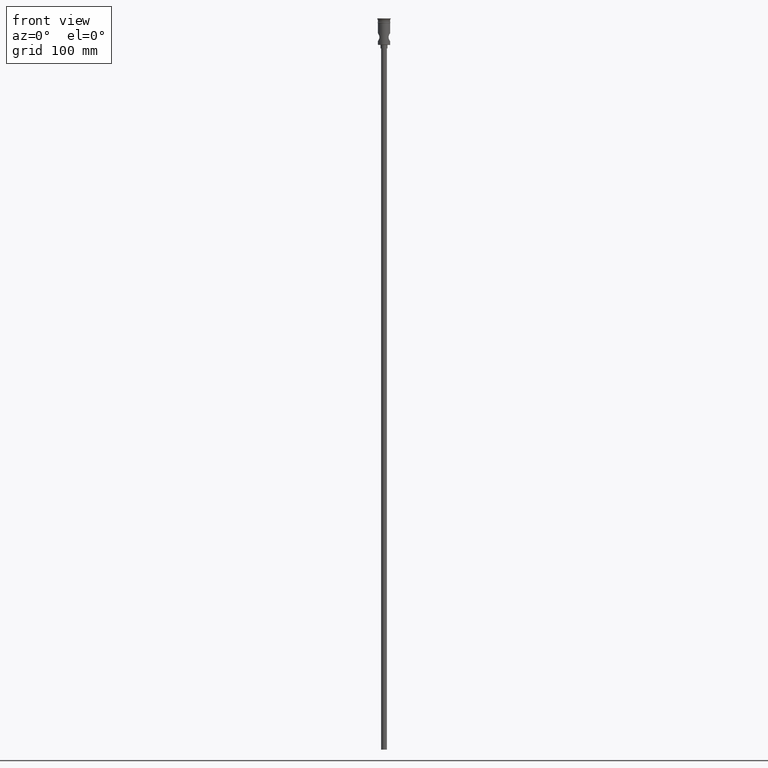
[diagram: clean part render]
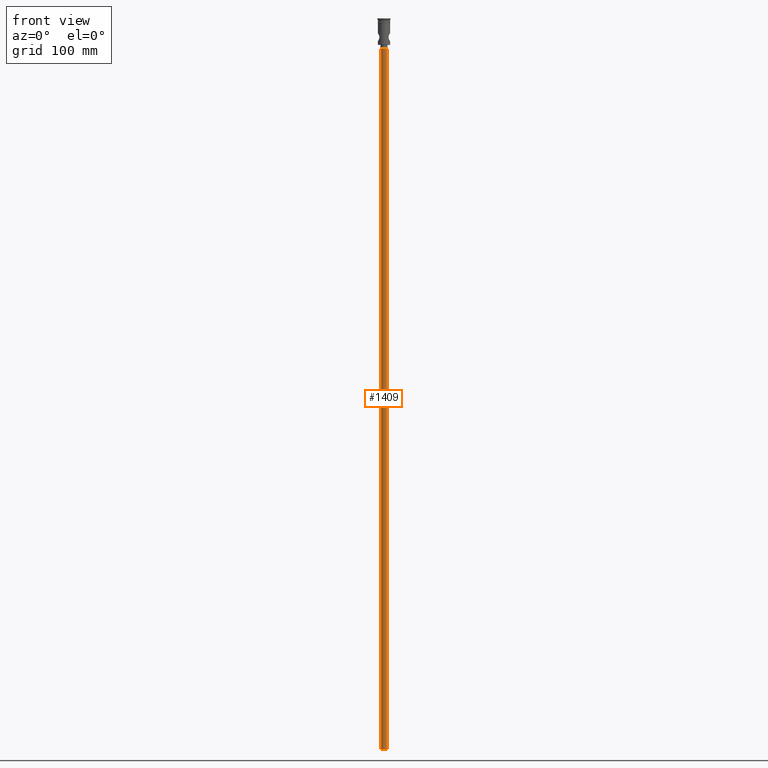
[diagram: same view with one face highlighted and labeled with its STEP entity id]
A machine part, front view. The second image highlights one B-rep face of the part: STEP entity #1409.
In plain terms, the highlighted cylindrical surface (edge-blend (fillet) strip) has radius 2.5 mm, axis along (-0, -0, 1).
Its self-contained STEP definition (entity closure, byte-faithful):
#4 = ORIENTED_EDGE ( 'NONE', *, *, #722, .F. ) ;
#55 = LINE ( 'NONE', #507, #60 ) ;
#60 = VECTOR ( 'NONE', #382, 1000.000000000000000 ) ;
#86 = CARTESIAN_POINT ( 'NONE',  ( -2.500000000000000000, 3.061616997868383141E-16, -622.4999999999998863 ) ) ;
#103 = AXIS2_PLACEMENT_3D ( 'NONE', #1075, #852, #1403 ) ;
#124 = FACE_OUTER_BOUND ( 'NONE', #985, .T. ) ;
#144 = DIRECTION ( 'NONE',  ( -0.000000000000000000, -0.000000000000000000, 1.000000000000000000 ) ) ;
#200 = EDGE_CURVE ( 'NONE', #1143, #327, #822, .T. ) ;
#251 = ORIENTED_EDGE ( 'NONE', *, *, #1185, .F. ) ;
#318 = CARTESIAN_POINT ( 'NONE',  ( 2.500000000000000000, 0.000000000000000000, -622.4999999999998863 ) ) ;
#327 = VERTEX_POINT ( 'NONE', #821 ) ;
#369 = CIRCLE ( 'NONE', #103, 2.500000000000000000 ) ;
#382 = DIRECTION ( 'NONE',  ( -0.000000000000000000, -0.000000000000000000, 1.000000000000000000 ) ) ;
#438 = DIRECTION ( 'NONE',  ( 1.000000000000000000, 0.000000000000000000, 0.000000000000000000 ) ) ;
#459 = VECTOR ( 'NONE', #144, 1000.000000000000000 ) ;
#484 = CARTESIAN_POINT ( 'NONE',  ( 2.500000000000000000, 0.000000000000000000, -25.50000000000000000 ) ) ;
#507 = CARTESIAN_POINT ( 'NONE',  ( -2.500000000000000000, 3.061616997868383141E-16, -622.4999999999998863 ) ) ;
#517 = VERTEX_POINT ( 'NONE', #86 ) ;
#577 = DIRECTION ( 'NONE',  ( -1.000000000000000000, 0.000000000000000000, 0.000000000000000000 ) ) ;
#659 = EDGE_CURVE ( 'NONE', #1337, #1143, #829, .T. ) ;
#722 = EDGE_CURVE ( 'NONE', #1337, #517, #369, .T. ) ;
#741 = CARTESIAN_POINT ( 'NONE',  ( 2.500000000000000000, 0.000000000000000000, -622.4999999999998863 ) ) ;
#808 = CARTESIAN_POINT ( 'NONE',  ( 0.000000000000000000, 0.000000000000000000, -622.4999999999998863 ) ) ;
#821 = CARTESIAN_POINT ( 'NONE',  ( -2.500000000000000000, 3.061616997868383141E-16, -25.50000000000000000 ) ) ;
#822 = CIRCLE ( 'NONE', #1123, 2.500000000000000000 ) ;
#829 = LINE ( 'NONE', #741, #459 ) ;
#852 = DIRECTION ( 'NONE',  ( 0.000000000000000000, 0.000000000000000000, -1.000000000000000000 ) ) ;
#985 = EDGE_LOOP ( 'NONE', ( #251, #4, #1417, #1260 ) ) ;
#990 = AXIS2_PLACEMENT_3D ( 'NONE', #808, #1453, #438 ) ;
#1034 = CARTESIAN_POINT ( 'NONE',  ( 0.000000000000000000, 0.000000000000000000, -25.50000000000000000 ) ) ;
#1075 = CARTESIAN_POINT ( 'NONE',  ( 0.000000000000000000, 0.000000000000000000, -622.4999999999998863 ) ) ;
#1123 = AXIS2_PLACEMENT_3D ( 'NONE', #1034, #1374, #577 ) ;
#1143 = VERTEX_POINT ( 'NONE', #484 ) ;
#1185 = EDGE_CURVE ( 'NONE', #517, #327, #55, .T. ) ;
#1260 = ORIENTED_EDGE ( 'NONE', *, *, #200, .T. ) ;
#1337 = VERTEX_POINT ( 'NONE', #318 ) ;
#1374 = DIRECTION ( 'NONE',  ( 0.000000000000000000, 0.000000000000000000, -1.000000000000000000 ) ) ;
#1403 = DIRECTION ( 'NONE',  ( -1.000000000000000000, 0.000000000000000000, 0.000000000000000000 ) ) ;
#1409 = ADVANCED_FACE ( 'NONE', ( #124 ), #1462, .T. ) ;
#1417 = ORIENTED_EDGE ( 'NONE', *, *, #659, .T. ) ;
#1453 = DIRECTION ( 'NONE',  ( -0.000000000000000000, -0.000000000000000000, 1.000000000000000000 ) ) ;
#1462 = CYLINDRICAL_SURFACE ( 'NONE', #990, 2.500000000000000000 ) ;